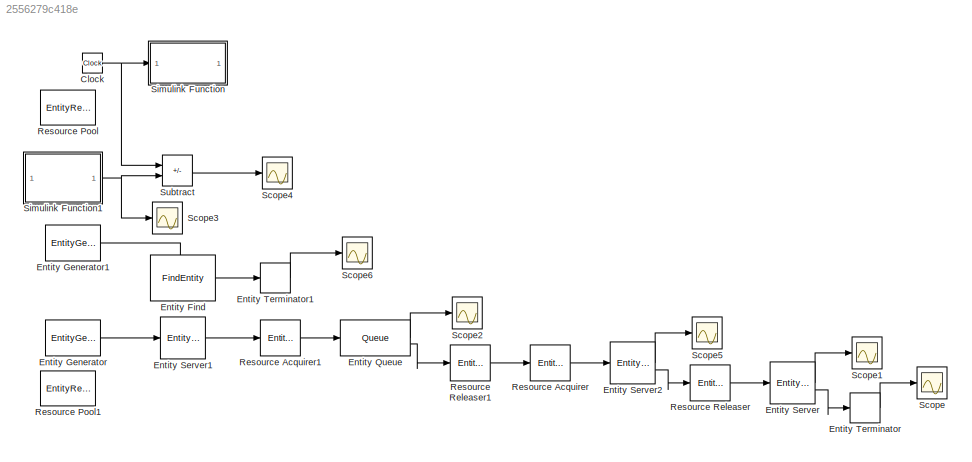
MODEL slx_2556279c418e
KIND model
CONFIG AbsTol = auto
CONFIG EnableMultiTasking = off
CONFIG FixedStep = auto
CONFIG MaxStep = auto
CONFIG MinStep = auto
CONFIG RelTol = 1e-3
CONFIG SampleTimeConstraint = Unconstrained
CONFIG SolverName = VariableStepAuto
CONFIG StartTime = 0.0
CONFIG StopTime = 100
BLOCK [Clock] Clock
BLOCK [FindEntity] Entity Find
  EnableOutput = on
  EntityFilter = on
  InputPortMap = u0
  InputPortMessageModes = m
  MatchingCondition = % match = isequal(trigger.Attribute1, entity.Attribute1);\n\nnow = SetTime()\n\nmatch = (now-entity.CasPrichodu)>entity.Trpelivost;
  OutputPortMap = o6
  OutputPortMessageModes = m
  ResourceName = Trpelivost
BLOCK [EntityGenerator] Entity Generator
  AttributeInitialValue = 1|1|1
  AttributeName = CasPrichodu|CasObsluhy|Trpelivost
  EntityType = Structured
  EntityTypeName = Entity
  GenerateAction = persistent rngInit;\nif isempty(rngInit)\n    seed = 12345;\n    rng(seed);\n    rngInit = true;\nend\n\n% Pattern: Uniform distribution\n% m: Minimum, M: Maximum\nm = 3; M = 7;\nentity.CasObsluhy = m + (M - m) * rand;\n\n% Pattern: Uniform distribution\n% m: Minimum, M: Maximum\nm = 10; M = 15;\nentity.Trpelivost = m + (M - m) * rand;
  IntergenerationTimeAction = persistent rngInit;\nif isempty(rngInit)\n    seed = 12345;\n    rng(seed);\n    rngInit = true;\nend\n\n% Pattern: Uniform distribution\n% m: Minimum, M: Maximum\nm = 0; M = 1;\ndt = m + (M - m) * rand;
  OutputPortMap = o3
  OutputPortMessageModes = m
  TimeSource = MATLAB action
BLOCK [EntityGenerator] Entity Generator1
  EntityType = Structured
  EntityTypeName = generator
  OutputPortMap = o3
  OutputPortMessageModes = m
  Period = 0.1
BLOCK [Queue] Entity Queue
  InputPortMap = u0
  InputPortMessageModes = m
  NumberEntitiesInBlock = on
  OutputPortMap = o1,o5
  OutputPortMessageModes = n,m
BLOCK [EntityServer] Entity Server
  ExitAction = ReadTime(entity.CasPrichodu)
  InputPortMap = u2
  InputPortMessageModes = m
  NumberEntitiesInBlock = on
  OutputPortMap = o1,o9
  OutputPortMessageModes = n,m
  ServiceTimeAction = persistent rngInit;\nif isempty(rngInit)\n    seed = 12345;\n    rng(seed);\n    rngInit = true;\nend\n\n% Pattern: Uniform distribution\n% m: Minimum, M: Maximum\nm = 2; M = 7;\ndt = m + (M - m) * rand;
  ServiceTimeAttributeName = CasObsluhy
  ServiceTimeSource = Attribute
BLOCK [EntityServer] Entity Server1
  Capacity = 1
  EntryAction = entity.CasPrichodu = SetTime()
  InputPortMap = u2
  InputPortMessageModes = m
  OutputPortMap = o9
  OutputPortMessageModes = m
  ServiceTimeValue = 0
BLOCK [EntityServer] Entity Server2
  InputPortMap = u2
  InputPortMessageModes = m
  NumberEntitiesInBlock = on
  OutputPortMap = o1,o9
  OutputPortMessageModes = n,m
BLOCK [EntityTerminator] Entity Terminator
  InputPortMap = u0
  InputPortMessageModes = m
  NumberEntitiesArrived = on
  OutputPortMap = o0
BLOCK [EntityTerminator] Entity Terminator1
  InputPortMap = u0
  InputPortMessageModes = m
  NumberEntitiesArrived = on
  OutputPortMap = o0
BLOCK [EntityResourceAcquirer] Resource Acquirer
  InputPortMap = u0
  InputPortMessageModes = m
  OutputPortMap = o3
  OutputPortMessageModes = m
  ResourceName = PocetCisniku
BLOCK [EntityResourceAcquirer] Resource Acquirer1
  InputPortMap = u0
  InputPortMessageModes = m
  OutputPortMap = o3
  OutputPortMessageModes = m
  ResourceName = Trpelivost
BLOCK [EntityResourcePool] Resource Pool
  ResourceAmount = 1
  ResourceName = PocetCisniku
BLOCK [EntityResourcePool] Resource Pool1
  ResourceAmount = 1000
  ResourceName = Trpelivost
BLOCK [EntityResourceReleaser] Resource Releaser
  InputPortMap = u0
  InputPortMessageModes = m
  OutputPortMap = o0
  OutputPortMessageModes = m
BLOCK [EntityResourceReleaser] Resource Releaser1
  InputPortMap = u0
  InputPortMessageModes = m
  OutputPortMap = o0
  OutputPortMessageModes = m
BLOCK [Scope] Scope
  Floating = off
  NumInputPorts = 1
  ScopeSpecificationString = Simulink.scopes.TimeScopeBlockCfg('CurrentConfiguration', extmgr.ConfigurationSet(extmgr.Configuration('Core','General UI',true),extmgr.Configuration('Core','Source UI',true),extmgr.Configuration('Sources','WiredSimulink',true),extmgr.Configuration('Visuals','Time Domain',true,'SerializedDisplays',{struct('MinYLimReal','-10.125','MaxYLimReal','101.125','YLabelReal','','MinYLimMag','0.00000','MaxYL...<+2369ch>
BLOCK [Scope] Scope1
  Floating = off
  NumInputPorts = 1
  ScopeSpecificationString = Simulink.scopes.TimeScopeBlockCfg('CurrentConfiguration', extmgr.ConfigurationSet(extmgr.Configuration('Core','General UI',true),extmgr.Configuration('Core','Source UI',true),extmgr.Configuration('Sources','WiredSimulink',true,'DataLoggingVariableName','ScopeData1'),extmgr.Configuration('Visuals','Time Domain',true,'SerializedDisplays',{struct('MinYLimReal','0.5','MaxYLimReal','5.5','YLabelReal','...<+2374ch>
BLOCK [Scope] Scope2
  Floating = off
  NumInputPorts = 1
  ScopeSpecificationString = Simulink.scopes.TimeScopeBlockCfg('CurrentConfiguration', extmgr.ConfigurationSet(extmgr.Configuration('Core','General UI',true),extmgr.Configuration('Core','Source UI',true),extmgr.Configuration('Sources','WiredSimulink',true,'DataLoggingVariableName','ScopeData2'),extmgr.Configuration('Visuals','Time Domain',true,'SerializedDisplays',{struct('MinYLimReal','-3.125','MaxYLimReal','28.125','YLabelR...<+2399ch>
BLOCK [Scope] Scope3
  Floating = off
  NumInputPorts = 1
  ScopeSpecificationString = Simulink.scopes.TimeScopeBlockCfg('CurrentConfiguration', extmgr.ConfigurationSet(extmgr.Configuration('Core','General UI',true),extmgr.Configuration('Core','Source UI',true),extmgr.Configuration('Sources','WiredSimulink',true,'DataLoggingVariableName','ScopeData3'),extmgr.Configuration('Visuals','Time Domain',true,'SerializedDisplays',{struct('MinYLimReal','-9.82124','MaxYLimReal','88.39115','YLa...<+2415ch>
BLOCK [Scope] Scope4
  Floating = off
  NumInputPorts = 1
  ScopeSpecificationString = Simulink.scopes.TimeScopeBlockCfg('CurrentConfiguration', extmgr.ConfigurationSet(extmgr.Configuration('Core','General UI',true),extmgr.Configuration('Core','Source UI',true),extmgr.Configuration('Sources','WiredSimulink',true,'DataLoggingVariableName','ScopeData4'),extmgr.Configuration('Visuals','Time Domain',true,'SerializedDisplays',{struct('MinYLimReal','-3.27666','MaxYLimReal','29.48993','YLa...<+2405ch>
BLOCK [Scope] Scope5
  Floating = off
  NumInputPorts = 1
  ScopeSpecificationString = Simulink.scopes.TimeScopeBlockCfg('CurrentConfiguration', extmgr.ConfigurationSet(extmgr.Configuration('Core','General UI',true),extmgr.Configuration('Core','Source UI',true),extmgr.Configuration('Sources','WiredSimulink',true,'DataLoggingVariableName','ScopeData5'),extmgr.Configuration('Visuals','Time Domain',true,'SerializedDisplays',{struct('MinYLimReal','-0.125','MaxYLimReal','1.125','YLabelRe...<+2394ch>
BLOCK [Scope] Scope6
  Floating = off
  NumInputPorts = 1
  ScopeSpecificationString = Simulink.scopes.TimeScopeBlockCfg('CurrentConfiguration', extmgr.ConfigurationSet(extmgr.Configuration('Core','General UI',true),extmgr.Configuration('Core','Source UI',true),extmgr.Configuration('Sources','WiredSimulink',true,'DataLoggingVariableName','ScopeData6'),extmgr.Configuration('Visuals','Time Domain',true,'SerializedDisplays',{struct('MinYLimReal','-8.5','MaxYLimReal','86.5','YLabelReal'...<+2391ch>
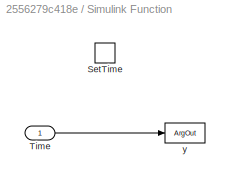
BLOCK [SubSystem] Simulink Function
  TreatAsAtomicUnit = on
BLOCK [TriggerPort] Simulink Function/SetTime
  FunctionName = SetTime
  FunctionVisibility = scoped
  IsSimulinkFunction = on
  StatesWhenEnabling = held
  TriggerType = function-call
  VariantControl = (inherit)
BLOCK [Inport] Simulink Function/Time
BLOCK [ArgOut] Simulink Function/y
  ArgumentName = y
  DisableCoverage = on
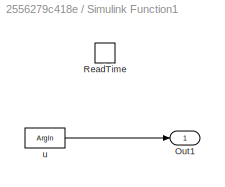
BLOCK [SubSystem] Simulink Function1
  TreatAsAtomicUnit = on
BLOCK [Outport] Simulink Function1/Out1
BLOCK [TriggerPort] Simulink Function1/ReadTime
  FunctionName = ReadTime
  FunctionVisibility = scoped
  IsSimulinkFunction = on
  StatesWhenEnabling = held
  TriggerType = function-call
  VariantControl = (inherit)
BLOCK [ArgIn] Simulink Function1/u
  ArgumentName = u
  DisableCoverage = on
BLOCK [Sum] Subtract
  IconShape = rectangular
  Inputs = +-
NET Clock:1 -> Simulink Function:1, Subtract:1
LINE Entity Find:1 -> Entity Terminator1:1
LINE Entity Generator1:1 -> Entity Find:1
LINE Entity Generator:1 -> Entity Server1:1
LINE Entity Queue:1 -> Scope2:1
LINE Entity Queue:2 -> Resource Releaser1:1
LINE Entity Server1:1 -> Resource Acquirer1:1
LINE Entity Server2:1 -> Scope5:1
LINE Entity Server2:2 -> Resource Releaser:1
LINE Entity Server:1 -> Scope1:1
LINE Entity Server:2 -> Entity Terminator:1
LINE Entity Terminator1:1 -> Scope6:1
LINE Entity Terminator:1 -> Scope:1
LINE Resource Acquirer1:1 -> Entity Queue:1
LINE Resource Acquirer:1 -> Entity Server2:1
LINE Resource Releaser1:1 -> Resource Acquirer:1
LINE Resource Releaser:1 -> Entity Server:1
LINE Simulink Function/Time:1 -> Simulink Function/y:1
LINE Simulink Function1/u:1 -> Simulink Function1/Out1:1
NET Simulink Function1:1 -> Scope3:1, Subtract:2
LINE Subtract:1 -> Scope4:1
note: NET lines group one-source signal fan-out (src -> all destinations, sorted); 1:1 wires keep LINE
